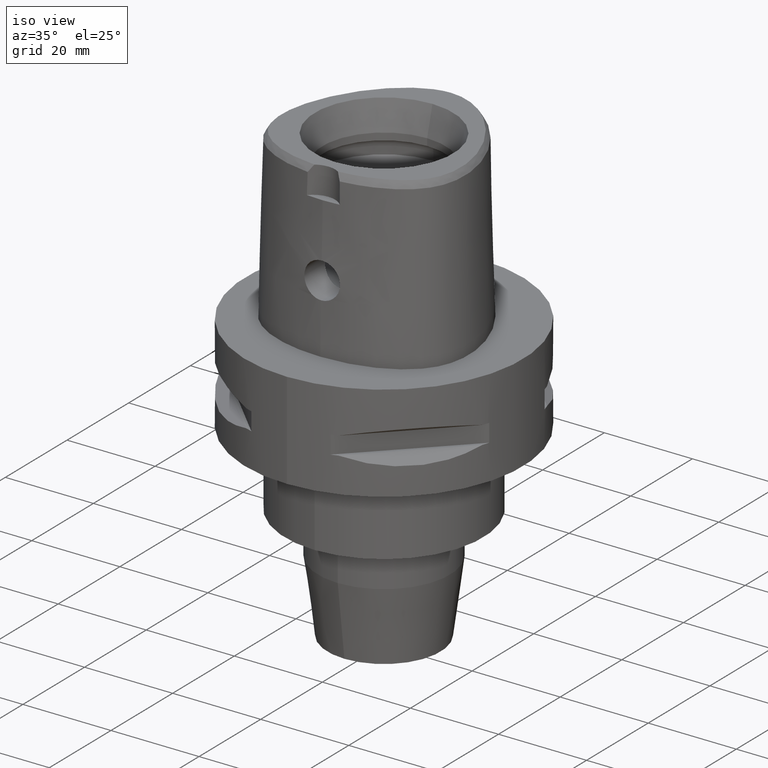
[diagram: clean part render]
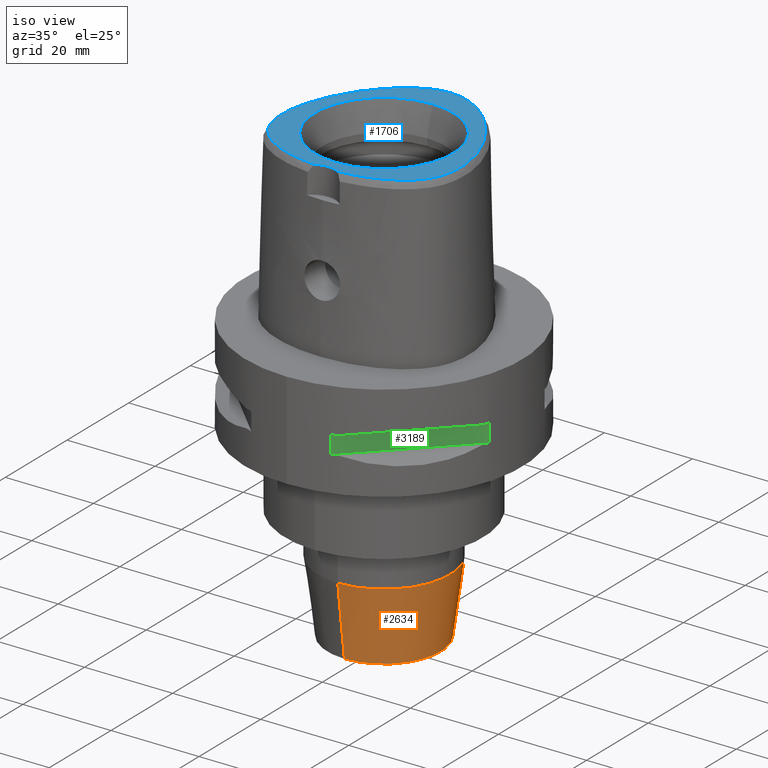
[diagram: same view with three faces highlighted in distinct colors, each labeled with its STEP entity id]
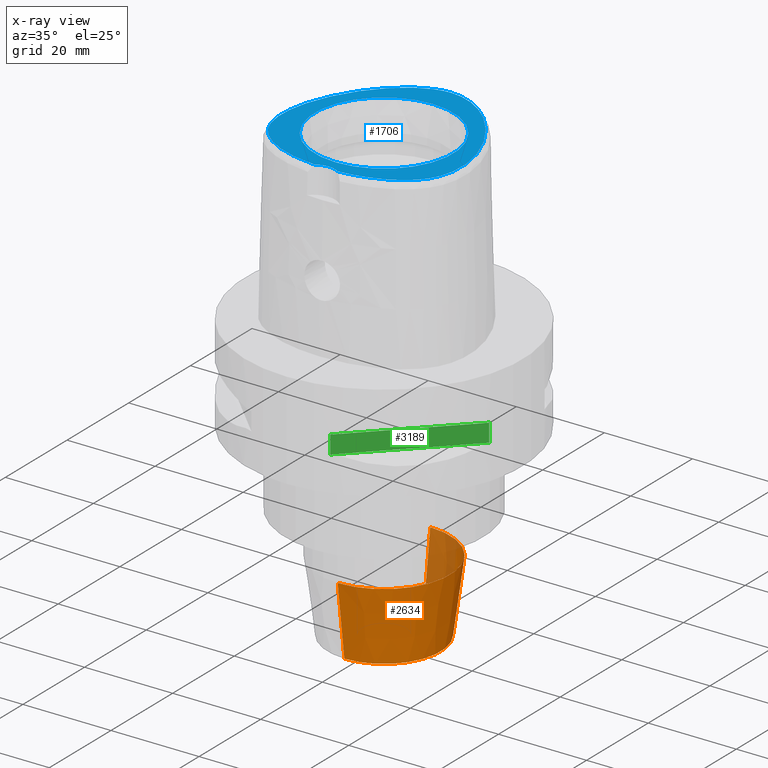
[diagram: x-ray of the same camera — body ghosted, the three highlighted faces saturated]
A machine part, iso view with three faces highlighted in distinct colors.
The next image is the same camera in x-ray (body ghosted, the three faces saturated) — at least one of them is partly hidden behind the body in this view.
Their STEP definitions:

[orange] entity #2634 — the highlighted conical surface has half-angle 7.5 deg.
#665=DIRECTION('',(0.E0,1.305261922200E-1,-9.914448613738E-1));
#666=VECTOR('',#665,1.650626562651E1);
#667=CARTESIAN_POINT('',(0.E0,-1.5E1,-4.863494776413E1));
#668=LINE('',#667,#666);
#672=DIRECTION('',(0.E0,-1.305261922200E-1,-9.914448613738E-1));
#673=VECTOR('',#672,1.650626562651E1);
#674=CARTESIAN_POINT('',(0.E0,1.5E1,-4.863494776413E1));
#675=LINE('',#674,#673);
#679=CARTESIAN_POINT('',(0.E0,0.E0,-4.863494776413E1));
#680=DIRECTION('',(0.E0,0.E0,1.E0));
#681=DIRECTION('',(0.E0,-1.E0,0.E0));
#682=AXIS2_PLACEMENT_3D('',#679,#680,#681);
#687=CARTESIAN_POINT('',(0.E0,0.E0,-6.5E1));
#688=DIRECTION('',(0.E0,0.E0,1.E0));
#689=DIRECTION('',(0.E0,-1.E0,0.E0));
#690=AXIS2_PLACEMENT_3D('',#687,#688,#689);
#1620=CARTESIAN_POINT('',(0.E0,1.5E1,-4.863494776413E1));
#1621=VERTEX_POINT('',#1620);
#1622=CARTESIAN_POINT('',(0.E0,-1.5E1,-4.863494776413E1));
#1623=VERTEX_POINT('',#1622);
#1624=CARTESIAN_POINT('',(0.E0,1.28455E1,-6.5E1));
#1625=VERTEX_POINT('',#1624);
#1626=CARTESIAN_POINT('',(0.E0,-1.28455E1,-6.5E1));
#1627=VERTEX_POINT('',#1626);
#2622=CARTESIAN_POINT('',(0.E0,0.E0,-5.681747388207E1));
#2623=DIRECTION('',(0.E0,0.E0,1.E0));
#2624=DIRECTION('',(0.E0,1.E0,0.E0));
#2625=AXIS2_PLACEMENT_3D('',#2622,#2623,#2624);
#2626=CONICAL_SURFACE('',#2625,1.392275E1,7.5E0);
#2627=ORIENTED_EDGE('',*,*,#2612,.T.);
#2629=ORIENTED_EDGE('',*,*,#2628,.F.);
#2630=ORIENTED_EDGE('',*,*,#2615,.F.);
#2631=ORIENTED_EDGE('',*,*,#2586,.T.);
#2632=EDGE_LOOP('',(#2627,#2629,#2630,#2631));
#2633=FACE_OUTER_BOUND('',#2632,.F.);
#683=CIRCLE('',#682,1.5E1);
#691=CIRCLE('',#690,1.28455E1);
#2586=EDGE_CURVE('',#1623,#1621,#683,.T.);
#2612=EDGE_CURVE('',#1621,#1625,#675,.T.);
#2615=EDGE_CURVE('',#1623,#1627,#668,.T.);
#2628=EDGE_CURVE('',#1627,#1625,#691,.T.);
#2634=ADVANCED_FACE('',(#2633),#2626,.T.);

[blue] entity #1706 — the highlighted planar face has unit normal (0, 0, 1).
#17=CARTESIAN_POINT('',(0.E0,-2.3E1,3.8E1));
#18=DIRECTION('',(0.E0,0.E0,1.E0));
#19=DIRECTION('',(5.364574965210E-1,8.439273395420E-1,0.E0));
#20=AXIS2_PLACEMENT_3D('',#17,#18,#19);
#26=CARTESIAN_POINT('',(0.E0,-2.3E1,3.8E1));
#27=DIRECTION('',(0.E0,0.E0,1.E0));
#28=DIRECTION('',(0.E0,1.E0,0.E0));
#29=AXIS2_PLACEMENT_3D('',#26,#27,#28);
#34=CARTESIAN_POINT('',(-2.682279906005E0,-1.878035848610E1,3.8E1));
#35=CARTESIAN_POINT('',(-3.521458619165E0,-1.871319423682E1,3.8E1));
#36=CARTESIAN_POINT('',(-5.111291747201E0,-1.852292371398E1,3.8E1));
#37=CARTESIAN_POINT('',(-7.276808298896E0,-1.809967314021E1,3.8E1));
#38=CARTESIAN_POINT('',(-9.097269073087E0,-1.760821597902E1,3.8E1));
#39=CARTESIAN_POINT('',(-1.068990502814E1,-1.706464019422E1,3.8E1));
#40=CARTESIAN_POINT('',(-1.213613443295E1,-1.645991403846E1,3.8E1));
#41=CARTESIAN_POINT('',(-1.345794505254E1,-1.579380997043E1,3.8E1));
#42=CARTESIAN_POINT('',(-1.466393154092E1,-1.506804528928E1,3.8E1));
#43=CARTESIAN_POINT('',(-1.577479766444E1,-1.426864890822E1,3.8E1));
#44=CARTESIAN_POINT('',(-1.675161154390E1,-1.342204647455E1,3.8E1));
#45=CARTESIAN_POINT('',(-1.757511077060E1,-1.255964954972E1,3.8E1));
#46=CARTESIAN_POINT('',(-1.825710168203E1,-1.169212569475E1,3.8E1));
#47=CARTESIAN_POINT('',(-1.882105641473E1,-1.081020886979E1,3.8E1));
#48=CARTESIAN_POINT('',(-1.929578000782E1,-9.873550630410E0,3.8E1));
#49=CARTESIAN_POINT('',(-1.970018908309E1,-8.835637169324E0,3.8E1));
#50=CARTESIAN_POINT('',(-2.002548241908E1,-7.687756000324E0,3.8E1));
#51=CARTESIAN_POINT('',(-2.026332329750E1,-6.396357547009E0,3.8E1));
#52=CARTESIAN_POINT('',(-2.038925914511E1,-5.018269000578E0,3.8E1));
#53=CARTESIAN_POINT('',(-2.040317083847E1,-3.605041156310E0,3.8E1));
#54=CARTESIAN_POINT('',(-2.030707994024E1,-2.117877155444E0,3.8E1));
#55=CARTESIAN_POINT('',(-2.009541804251E1,-5.580485786789E-1,3.8E1));
#56=CARTESIAN_POINT('',(-1.975592685859E1,1.105037445944E0,3.8E1));
#57=CARTESIAN_POINT('',(-1.925020861804E1,2.952469968078E0,3.8E1));
#58=CARTESIAN_POINT('',(-1.851362574273E1,5.051493337978E0,3.8E1));
#59=CARTESIAN_POINT('',(-1.752688540693E1,7.303266439849E0,3.8E1));
#60=CARTESIAN_POINT('',(-1.634961108374E1,9.517560814319E0,3.8E1));
#61=CARTESIAN_POINT('',(-1.501843098524E1,1.162953406869E1,3.8E1));
#62=CARTESIAN_POINT('',(-1.354990456551E1,1.361003587997E1,3.8E1));
#63=CARTESIAN_POINT('',(-1.210225334614E1,1.528068252232E1,3.8E1));
#64=CARTESIAN_POINT('',(-1.076173105987E1,1.662554199734E1,3.8E1));
#65=CARTESIAN_POINT('',(-9.493490618412E0,1.774066880216E1,3.8E1));
#66=CARTESIAN_POINT('',(-8.252039040773E0,1.869348749639E1,3.8E1));
#67=CARTESIAN_POINT('',(-7.014652304817E0,1.951207731098E1,3.8E1));
#68=CARTESIAN_POINT('',(-5.777500243419E0,2.020296771007E1,3.8E1));
#69=CARTESIAN_POINT('',(-4.537390760909E0,2.076825792625E1,3.8E1));
#70=CARTESIAN_POINT('',(-3.316317207295E0,2.119806072169E1,3.8E1));
#71=CARTESIAN_POINT('',(-2.153535713541E0,2.148771460698E1,3.8E1));
#72=CARTESIAN_POINT('',(-1.057500170764E0,2.165168596617E1,3.8E1));
#73=CARTESIAN_POINT('',(-3.477070951902E-1,2.168728795389E1,3.8E1));
#74=CARTESIAN_POINT('',(-3.470663397159E-11,2.168728795390E1,3.8E1));
#79=CARTESIAN_POINT('',(-3.470663397159E-11,2.168728795390E1,3.8E1));
#80=CARTESIAN_POINT('',(3.469727918038E-1,2.168728795390E1,3.8E1));
#81=CARTESIAN_POINT('',(1.055493982771E0,2.165193984717E1,3.8E1));
#82=CARTESIAN_POINT('',(2.153244125244E0,2.148769274776E1,3.8E1));
#83=CARTESIAN_POINT('',(3.312270347815E0,2.119934460417E1,3.8E1));
#84=CARTESIAN_POINT('',(4.543384674734E0,2.076630692026E1,3.8E1));
#85=CARTESIAN_POINT('',(5.792325981793E0,2.019542533133E1,3.8E1));
#86=CARTESIAN_POINT('',(7.023117505620E0,1.950675166868E1,3.8E1));
#87=CARTESIAN_POINT('',(8.262011240206E0,1.868652740517E1,3.8E1));
#88=CARTESIAN_POINT('',(9.505877655494E0,1.773039925087E1,3.8E1));
#89=CARTESIAN_POINT('',(1.076987123882E1,1.661778822122E1,3.8E1));
#90=CARTESIAN_POINT('',(1.211273346448E1,1.526966767274E1,3.8E1));
#91=CARTESIAN_POINT('',(1.356225490270E1,1.359433659132E1,3.8E1));
#92=CARTESIAN_POINT('',(1.502408417006E1,1.162129239208E1,3.8E1));
#93=CARTESIAN_POINT('',(1.635924384486E1,9.500965162455E0,3.8E1));
#94=CARTESIAN_POINT('',(1.753114075985E1,7.294318594025E0,3.8E1));
#95=CARTESIAN_POINT('',(1.851967127929E1,5.036392772778E0,3.8E1));
#96=CARTESIAN_POINT('',(1.925287689111E1,2.943206717657E0,3.8E1));
#97=CARTESIAN_POINT('',(1.975716515929E1,1.100071403207E0,3.8E1));
#98=CARTESIAN_POINT('',(2.009714102742E1,-5.677469041413E-1,3.8E1));
#99=CARTESIAN_POINT('',(2.030755684184E1,-2.124482454239E0,3.8E1));
#100=CARTESIAN_POINT('',(2.040327604220E1,-3.605935152357E0,3.8E1));
#101=CARTESIAN_POINT('',(2.038887292837E1,-5.026293468689E0,3.8E1));
#102=CARTESIAN_POINT('',(2.026327766458E1,-6.393064525841E0,3.8E1));
#103=CARTESIAN_POINT('',(2.002853453228E1,-7.674656031890E0,3.8E1));
#104=CARTESIAN_POINT('',(1.970200764467E1,-8.830760688566E0,3.8E1));
#105=CARTESIAN_POINT('',(1.929834394927E1,-9.867476472108E0,3.8E1));
#106=CARTESIAN_POINT('',(1.882613747461E1,-1.080084086304E1,3.8E1));
#107=CARTESIAN_POINT('',(1.826656560380E1,-1.167895114933E1,3.8E1));
#108=CARTESIAN_POINT('',(1.758213420272E1,-1.255146447240E1,3.8E1));
#109=CARTESIAN_POINT('',(1.676558555883E1,-1.340867772511E1,3.8E1));
#110=CARTESIAN_POINT('',(1.578406025448E1,-1.426168965232E1,3.8E1));
#111=CARTESIAN_POINT('',(1.467092673981E1,-1.506346318434E1,3.8E1));
#112=CARTESIAN_POINT('',(1.346507240738E1,-1.578988567466E1,3.8E1));
#113=CARTESIAN_POINT('',(1.214380603741E1,-1.645640199307E1,3.8E1));
#114=CARTESIAN_POINT('',(1.069852895364E1,-1.706128311153E1,3.8E1));
#115=CARTESIAN_POINT('',(9.112060686622E0,-1.760362252717E1,3.8E1));
#116=CARTESIAN_POINT('',(7.291769275536E0,-1.809630193731E1,3.8E1));
#117=CARTESIAN_POINT('',(5.120869614193E0,-1.852161390771E1,3.8E1));
#118=CARTESIAN_POINT('',(3.525130177848E0,-1.871289571812E1,3.8E1));
#119=CARTESIAN_POINT('',(2.682287482607E0,-1.878036330229E1,3.8E1));
#124=CARTESIAN_POINT('',(0.E0,0.E0,3.8E1));
#125=DIRECTION('',(0.E0,0.E0,1.E0));
#126=DIRECTION('',(0.E0,1.E0,0.E0));
#127=AXIS2_PLACEMENT_3D('',#124,#125,#126);
#132=CARTESIAN_POINT('',(0.E0,0.E0,3.8E1));
#133=DIRECTION('',(0.E0,0.E0,1.E0));
#134=DIRECTION('',(0.E0,-1.E0,0.E0));
#135=AXIS2_PLACEMENT_3D('',#132,#133,#134);
#1518=CARTESIAN_POINT('',(0.E0,-1.8E1,3.8E1));
#1519=CARTESIAN_POINT('',(-2.682279906007E0,-1.878035848610E1,3.8E1));
#1520=VERTEX_POINT('',#1518);
#1521=VERTEX_POINT('',#1519);
#1522=CARTESIAN_POINT('',(2.682287482605E0,-1.878036330229E1,3.8E1));
#1523=VERTEX_POINT('',#1522);
#1524=VERTEX_POINT('',#74);
#1525=CARTESIAN_POINT('',(0.E0,1.571487483156E1,3.8E1));
#1526=CARTESIAN_POINT('',(0.E0,-1.571487483156E1,3.8E1));
#1527=VERTEX_POINT('',#1525);
#1528=VERTEX_POINT('',#1526);
#1685=CARTESIAN_POINT('',(0.E0,0.E0,3.8E1));
#1686=DIRECTION('',(0.E0,0.E0,1.E0));
#1687=DIRECTION('',(0.E0,1.E0,0.E0));
#1688=AXIS2_PLACEMENT_3D('',#1685,#1686,#1687);
#1689=PLANE('',#1688);
#1691=ORIENTED_EDGE('',*,*,#1690,.T.);
#1693=ORIENTED_EDGE('',*,*,#1692,.T.);
#1695=ORIENTED_EDGE('',*,*,#1694,.T.);
#1697=ORIENTED_EDGE('',*,*,#1696,.T.);
#1698=EDGE_LOOP('',(#1691,#1693,#1695,#1697));
#1699=FACE_OUTER_BOUND('',#1698,.F.);
#1701=ORIENTED_EDGE('',*,*,#1700,.T.);
#1703=ORIENTED_EDGE('',*,*,#1702,.T.);
#1704=EDGE_LOOP('',(#1701,#1703));
#1705=FACE_BOUND('',#1704,.F.);
#21=CIRCLE('',#20,5.E0);
#30=CIRCLE('',#29,5.E0);
#75=B_SPLINE_CURVE_WITH_KNOTS('',3,(#34,#35,#36,#37,#38,#39,#40,#41,#42,#43,#44,
#45,#46,#47,#48,#49,#50,#51,#52,#53,#54,#55,#56,#57,#58,#59,#60,#61,#62,#63,#64,
#65,#66,#67,#68,#69,#70,#71,#72,#73,#74),.UNSPECIFIED.,.F.,.F.,(4,1,1,1,1,1,1,1,
1,1,1,1,1,1,1,1,1,1,1,1,1,1,1,1,1,1,1,1,1,1,1,1,1,1,1,1,1,1,4),(0.E0,
2.631578947368E-2,5.263157894737E-2,7.894736842105E-2,1.052631578947E-1,
1.315789473684E-1,1.578947368421E-1,1.842105263158E-1,2.105263157895E-1,
2.368421052632E-1,2.631578947368E-1,2.894736842105E-1,3.157894736842E-1,
3.421052631579E-1,3.684210526316E-1,3.947368421053E-1,4.210526315789E-1,
4.473684210526E-1,4.736842105263E-1,5.E-1,5.263157894737E-1,5.526315789474E-1,
5.789473684211E-1,6.052631578947E-1,6.315789473684E-1,6.578947368421E-1,
6.842105263158E-1,7.105263157895E-1,7.368421052632E-1,7.631578947368E-1,
7.894736842105E-1,8.157894736842E-1,8.421052631579E-1,8.684210526316E-1,
8.947368421053E-1,9.210526315789E-1,9.473684210526E-1,9.736842105263E-1,1.E0),
.UNSPECIFIED.);
#120=B_SPLINE_CURVE_WITH_KNOTS('',3,(#79,#80,#81,#82,#83,#84,#85,#86,#87,#88,
#89,#90,#91,#92,#93,#94,#95,#96,#97,#98,#99,#100,#101,#102,#103,#104,#105,#106,
#107,#108,#109,#110,#111,#112,#113,#114,#115,#116,#117,#118,#119),.UNSPECIFIED.,
.F.,.F.,(4,1,1,1,1,1,1,1,1,1,1,1,1,1,1,1,1,1,1,1,1,1,1,1,1,1,1,1,1,1,1,1,1,1,1,
1,1,1,4),(0.E0,2.631578947368E-2,5.263157894737E-2,7.894736842105E-2,
1.052631578947E-1,1.315789473684E-1,1.578947368421E-1,1.842105263158E-1,
2.105263157895E-1,2.368421052632E-1,2.631578947368E-1,2.894736842105E-1,
3.157894736842E-1,3.421052631579E-1,3.684210526316E-1,3.947368421053E-1,
4.210526315789E-1,4.473684210526E-1,4.736842105263E-1,5.E-1,5.263157894737E-1,
5.526315789474E-1,5.789473684211E-1,6.052631578947E-1,6.315789473684E-1,
6.578947368421E-1,6.842105263158E-1,7.105263157895E-1,7.368421052632E-1,
7.631578947368E-1,7.894736842105E-1,8.157894736842E-1,8.421052631579E-1,
8.684210526316E-1,8.947368421053E-1,9.210526315789E-1,9.473684210526E-1,
9.736842105263E-1,1.E0),.UNSPECIFIED.);
#128=CIRCLE('',#127,1.571487483156E1);
#136=CIRCLE('',#135,1.571487483156E1);
#1690=EDGE_CURVE('',#1523,#1520,#21,.T.);
#1692=EDGE_CURVE('',#1520,#1521,#30,.T.);
#1694=EDGE_CURVE('',#1521,#1524,#75,.T.);
#1696=EDGE_CURVE('',#1524,#1523,#120,.T.);
#1700=EDGE_CURVE('',#1527,#1528,#128,.T.);
#1702=EDGE_CURVE('',#1528,#1527,#136,.T.);
#1706=ADVANCED_FACE('',(#1699,#1705),#1689,.T.);

[green] entity #3189 — the highlighted planar face has unit normal (-0.7071, 0.7071, 0).
#471=DIRECTION('',(0.E0,0.E0,-1.E0));
#472=VECTOR('',#471,4.1E0);
#473=CARTESIAN_POINT('',(8.981198972018E0,-3.019251670572E1,-9.95E0));
#474=LINE('',#473,#472);
#489=DIRECTION('',(0.E0,0.E0,1.E0));
#490=VECTOR('',#489,4.1E0);
#491=CARTESIAN_POINT('',(3.019251670572E1,-8.981198972018E0,-1.405E1));
#492=LINE('',#491,#490);
#1268=DIRECTION('',(7.071067811865E-1,7.071067811865E-1,0.E0));
#1269=VECTOR('',#1268,2.999733321480E1);
#1270=CARTESIAN_POINT('',(8.981198972018E0,-3.019251670572E1,-9.95E0));
#1271=LINE('',#1270,#1269);
#1291=DIRECTION('',(7.071067811865E-1,7.071067811865E-1,0.E0));
#1292=VECTOR('',#1291,2.999733321480E1);
#1293=CARTESIAN_POINT('',(8.981198972018E0,-3.019251670572E1,-1.405E1));
#1294=LINE('',#1293,#1292);
#1580=CARTESIAN_POINT('',(8.981198972020E0,-3.019251670572E1,-9.95E0));
#1581=VERTEX_POINT('',#1580);
#1582=CARTESIAN_POINT('',(8.981198972018E0,-3.019251670572E1,-1.405E1));
#1583=VERTEX_POINT('',#1582);
#1587=CARTESIAN_POINT('',(3.019251670572E1,-8.981198972020E0,-1.405E1));
#1588=VERTEX_POINT('',#1587);
#1589=CARTESIAN_POINT('',(3.019251670572E1,-8.981198972018E0,-9.95E0));
#1590=VERTEX_POINT('',#1589);
#3177=CARTESIAN_POINT('',(3.372899346260E1,-5.444722215136E0,-9.95E0));
#3178=DIRECTION('',(-7.071067811865E-1,7.071067811865E-1,0.E0));
#3179=DIRECTION('',(0.E0,0.E0,-1.E0));
#3180=AXIS2_PLACEMENT_3D('',#3177,#3178,#3179);
#3181=PLANE('',#3180);
#3182=ORIENTED_EDGE('',*,*,#2454,.F.);
#3184=ORIENTED_EDGE('',*,*,#3183,.F.);
#3185=ORIENTED_EDGE('',*,*,#2446,.F.);
#3186=ORIENTED_EDGE('',*,*,#3170,.T.);
#3187=EDGE_LOOP('',(#3182,#3184,#3185,#3186));
#3188=FACE_OUTER_BOUND('',#3187,.F.);
#2446=EDGE_CURVE('',#1581,#1583,#474,.T.);
#2454=EDGE_CURVE('',#1588,#1590,#492,.T.);
#3170=EDGE_CURVE('',#1581,#1590,#1271,.T.);
#3183=EDGE_CURVE('',#1583,#1588,#1294,.T.);
#3189=ADVANCED_FACE('',(#3188),#3181,.F.);